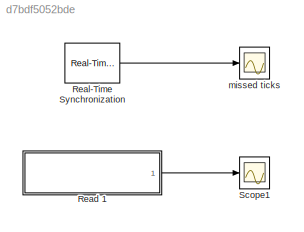
MODEL slx_d7bdf5052bde
KIND model
CONFIG AbsTol = auto
CONFIG FixedStep = 0.001
CONFIG MaxStep = auto
CONFIG MinStep = auto
CONFIG RelTol = 1e-3
CONFIG SampleTimeConstraint = Unconstrained
CONFIG Solver = FixedStepAuto
CONFIG SolverMode = Auto
CONFIG SolverName = FixedStepAuto
CONFIG StartTime = 0.0
CONFIG StopTime = inf
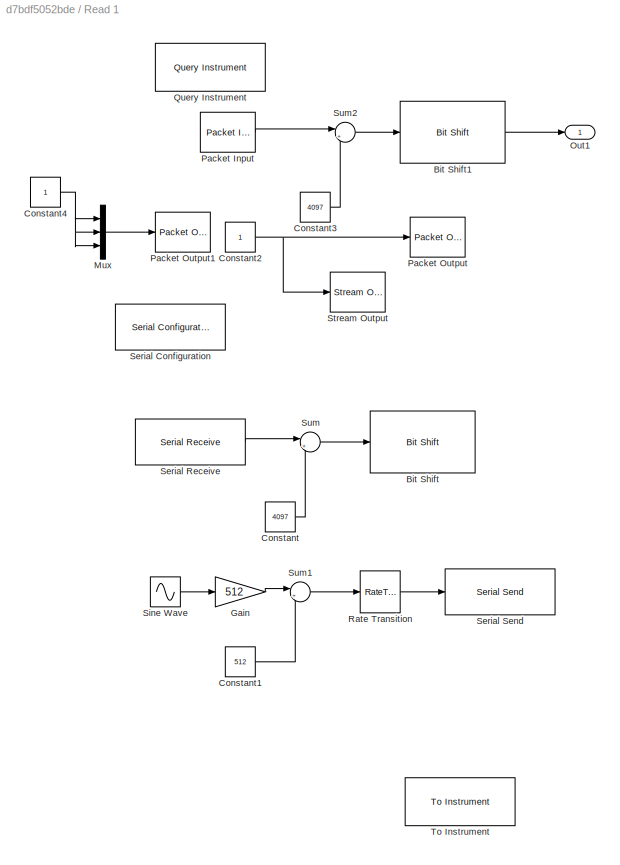
BLOCK [SubSystem] Read 1
  Ports = [0, 1]
  RequestExecContextInheritance = off
  Variant = off
BLOCK [Reference] Read 1/Bit Shift  REF=hdlsllib/HDL Operations/Bit Shift
  Commented = on
  Ports = [1, 1]
  SourceBlock = hdlsllib/HDL Operations/Bit Shift
  SourceType = Bit Shift
BLOCK [Reference] Read 1/Bit Shift1  REF=hdlsllib/HDL Operations/Bit Shift
  Ports = [1, 1]
  SourceBlock = hdlsllib/HDL Operations/Bit Shift
  SourceType = Bit Shift
BLOCK [Constant] Read 1/Constant
  Commented = on
  Value = 4097
BLOCK [Constant] Read 1/Constant1
  Commented = on
  Value = 512
BLOCK [Constant] Read 1/Constant2
  Commented = on
BLOCK [Constant] Read 1/Constant3
  Value = 4097
BLOCK [Constant] Read 1/Constant4
BLOCK [Gain] Read 1/Gain
  Commented = on
  Gain = 512
  OutDataTypeStr = Inherit: Inherit via internal rule
  ParamDataTypeStr = Inherit: Inherit via internal rule
  SaturateOnIntegerOverflow = off
BLOCK [Mux] Read 1/Mux
  DisplayOption = bar
  Inputs = 3
  Ports = [3, 1]
BLOCK [Outport] Read 1/Out1
  IconDisplay = Port number
BLOCK [Reference] Read 1/Packet Input  REF=sldrtlib/Packet Input
  AttributesFormatString = Standard Devices\nSerial Port [3h]
  Ports = [0, 1]
  SourceBlock = sldrtlib/Packet Input
  SourceType = Simulink Desktop Real-Time Packet Input
BLOCK [Reference] Read 1/Packet Output  REF=sldrtlib/Packet Output
  AttributesFormatString = Standard Devices\nSerial Port [3h]
  Commented = on
  Ports = [1]
  SourceBlock = sldrtlib/Packet Output
  SourceType = Simulink Desktop Real-Time Packet Output
BLOCK [Reference] Read 1/Packet Output1  REF=sldrtlib/Packet Output
  AttributesFormatString = Standard Devices\nSerial Port [5h]
  Commented = on
  Ports = [1]
  SourceBlock = sldrtlib/Packet Output
  SourceType = Simulink Desktop Real-Time Packet Output
BLOCK [Reference] Read 1/Query Instrument  REF=instrumentlib/Query Instrument
  Commented = on
  Ports = [0, 1]
  SourceBlock = instrumentlib/Query Instrument
  SourceType = queryinstrument
BLOCK [RateTransition] Read 1/Rate Transition
  Commented = on
BLOCK [Reference] Read 1/Serial Configuration  REF=instrumentlib/Serial Configuration
  Commented = on
  Ports = []
  Priority = -200000
  SourceBlock = instrumentlib/Serial Configuration
  SourceType = Serial Configuration
BLOCK [Reference] Read 1/Serial Receive  REF=instrumentlib/Serial Receive
  Commented = on
  Ports = [0, 1]
  SourceBlock = instrumentlib/Serial Receive
  SourceType = Serial Receive
BLOCK [Reference] Read 1/Serial Send  REF=instrumentlib/Serial Send
  Commented = on
  Ports = [1]
  SourceBlock = instrumentlib/Serial Send
  SourceType = Serial Send
BLOCK [Sin] Read 1/Sine Wave
  Commented = on
  Ports = [0, 1]
  SampleTime = 0
BLOCK [Reference] Read 1/Stream Output  REF=sldrtlib/Stream Output
  AttributesFormatString = Standard Devices\nSerial Port [3h]
  Commented = on
  Ports = [1]
  SourceBlock = sldrtlib/Stream Output
  SourceType = Simulink Desktop Real-Time Stream Output
BLOCK [Sum] Read 1/Sum
  Commented = on
  IconShape = round
  InputSameDT = off
  Inputs = |+-
  OutDataTypeStr = Inherit: Inherit via internal rule
  Ports = [2, 1]
  SaturateOnIntegerOverflow = off
BLOCK [Sum] Read 1/Sum1
  Commented = on
  IconShape = round
  InputSameDT = off
  Inputs = |++
  OutDataTypeStr = Inherit: Inherit via internal rule
  Ports = [2, 1]
  SaturateOnIntegerOverflow = off
BLOCK [Sum] Read 1/Sum2
  IconShape = round
  InputSameDT = off
  Inputs = |+-
  OutDataTypeStr = Inherit: Inherit via internal rule
  Ports = [2, 1]
  SaturateOnIntegerOverflow = off
BLOCK [Reference] Read 1/To Instrument  REF=instrumentlib/To Instrument
  Commented = on
  Ports = [1]
  SourceBlock = instrumentlib/To Instrument
  SourceType = toinstrument
BLOCK [Reference] Real-Time Synchronization  REF=sldrtlib/Real-Time
Synchronization
  Ports = [0, 1]
  SourceBlock = sldrtlib/Real-Time\nSynchronization
  SourceType = Simulink Desktop Real-Time Synchronization
BLOCK [Scope] Scope1
  Ports = [1]
  ScopeSpecificationString = Simulink.scopes.TimeScopeBlockCfg('CurrentConfiguration', extmgr.ConfigurationSet(extmgr.Configuration('Core','General UI',true),extmgr.Configuration('Core','Source UI',true),extmgr.Configuration('Sources','WiredSimulink',true,'DataLoggingVariableName','ScopeData2'),extmgr.Configuration('Visuals','Time Domain',true,'SerializedDisplays',{struct('MinYLimReal','-255.00000','MaxYLimReal','2295.00000',...<+1493ch>
BLOCK [Scope] missed ticks
  Ports = [1]
  ScopeSpecificationString = Simulink.scopes.TimeScopeBlockCfg('CurrentConfiguration', extmgr.ConfigurationSet(extmgr.Configuration('Core','General UI',true),extmgr.Configuration('Core','Source UI',true),extmgr.Configuration('Sources','WiredSimulink',true,'DataLoggingVariableName','ScopeData1'),extmgr.Configuration('Visuals','Time Domain',true,'SerializedDisplays',{struct('MinYLimReal','-1.00000','MaxYLimReal','1.00000','YLab...<+1461ch>
LINE Read 1/Bit Shift1:1 -> Read 1/Out1:1
LINE Read 1/Constant1:1 -> Read 1/Sum1:2
NET Read 1/Constant2:1 -> Read 1/Packet Output:1, Read 1/Stream Output:1
LINE Read 1/Constant3:1 -> Read 1/Sum2:2
NET Read 1/Constant4:1 -> Read 1/Mux:1, Read 1/Mux:2, Read 1/Mux:3
LINE Read 1/Constant:1 -> Read 1/Sum:2
LINE Read 1/Gain:1 -> Read 1/Sum1:1
LINE Read 1/Mux:1 -> Read 1/Packet Output1:1
LINE Read 1/Packet Input:1 -> Read 1/Sum2:1
LINE Read 1/Rate Transition:1 -> Read 1/Serial Send:1
LINE Read 1/Serial Receive:1 -> Read 1/Sum:1
LINE Read 1/Sine Wave:1 -> Read 1/Gain:1
LINE Read 1/Sum1:1 -> Read 1/Rate Transition:1
LINE Read 1/Sum2:1 -> Read 1/Bit Shift1:1
LINE Read 1/Sum:1 -> Read 1/Bit Shift:1
LINE Read 1:1 -> Scope1:1
LINE Real-Time Synchronization:1 -> missed ticks:1
note: NET lines group one-source signal fan-out (src -> all destinations, sorted); 1:1 wires keep LINE
